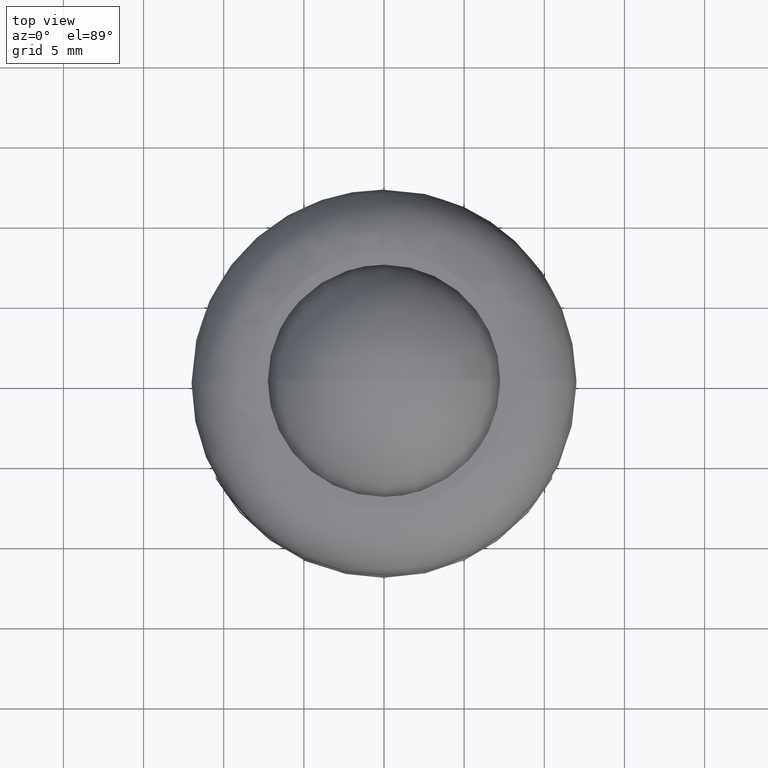
[diagram: clean part render]
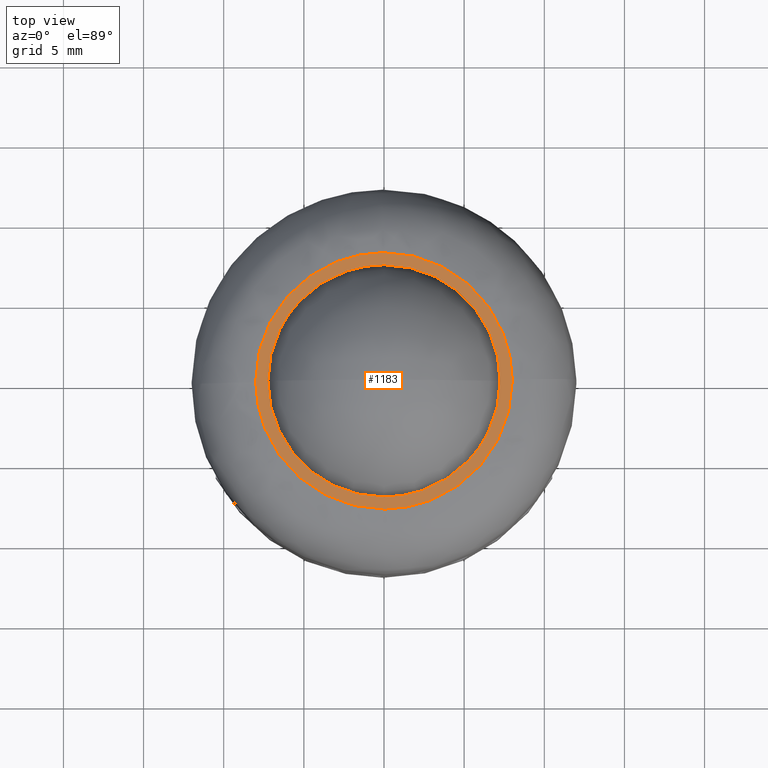
[diagram: same view with one face highlighted and labeled with its STEP entity id]
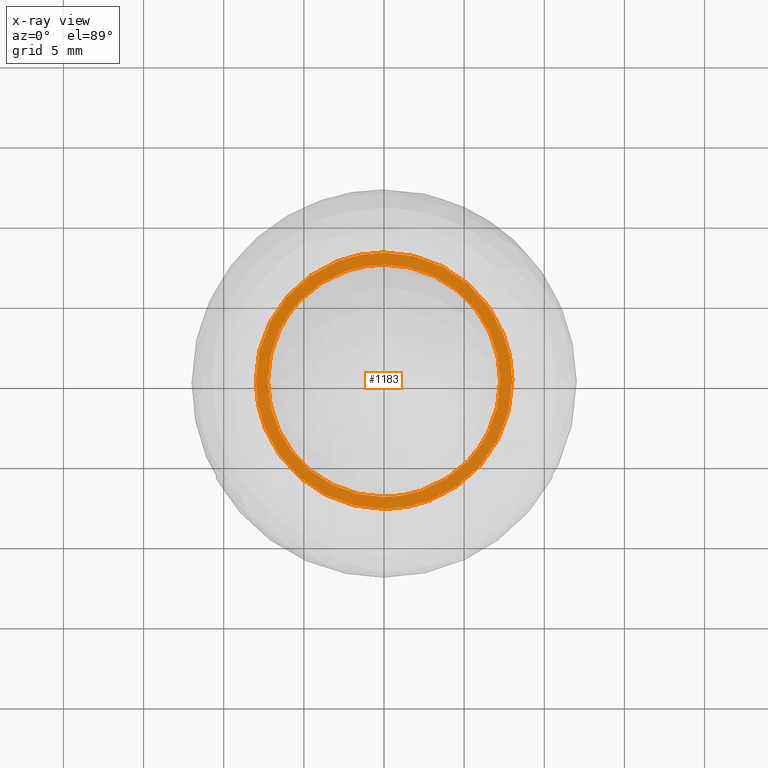
[diagram: x-ray of the same camera — body ghosted, the highlighted face saturated]
A machine part, top view. The second image highlights one B-rep face of the part: STEP entity #1183.
The next image is the same camera in x-ray: the body ghosted, the highlighted face saturated — about 0% of this face is hidden behind the body in this view.
In plain terms, the highlighted face is a freeform B-spline surface patch.
Its self-contained STEP definition (entity closure, byte-faithful):
#875=CARTESIAN_POINT('',(-5.256962737219276,4.988671336458847,11.999999999995980));
#876=VERTEX_POINT('',#875);
#877=CARTESIAN_POINT('',(0.000000297426015,7.247240854283785,12.0));
#878=VERTEX_POINT('',#877);
#879=CARTESIAN_POINT('',(-5.256962737219276,4.988671336458847,11.999999999995980));
#880=CARTESIAN_POINT('',(-4.824807146085149,5.444360692292099,11.999999999996300));
#881=CARTESIAN_POINT('',(-4.164910214977581,5.979379744965896,11.999999999996851));
#882=CARTESIAN_POINT('',(-3.159751213976001,6.537905282122430,11.999999999997570));
#883=CARTESIAN_POINT('',(-2.325536756776154,6.890105403994554,11.999999999998090));
#884=CARTESIAN_POINT('',(-1.240660778071789,7.174962478575369,11.999999999999490));
#885=CARTESIAN_POINT('',(-0.428876816743742,7.247284513954469,11.999999999999400));
#886=CARTESIAN_POINT('',(0.000000297426015,7.247240854283785,12.0));
#887=B_SPLINE_CURVE_WITH_KNOTS('',3,(#879,#880,#881,#882,#883,#884,#885,#886),.UNSPECIFIED.,.F.,.U.,(4,1,1,1,1,4),(9.078425E-009,1.883988978013885,2.527304255712489,3.446308872447911,4.595088400484167,5.881712119419972),.UNSPECIFIED.);
#888=EDGE_CURVE('',#876,#878,#887,.T.);
#939=CARTESIAN_POINT('',(5.256962737219293,-4.988671336458864,11.999999999995980));
#940=VERTEX_POINT('',#939);
#946=CARTESIAN_POINT('',(7.247240854283791,0.0,12.0));
#947=VERTEX_POINT('',#946);
#948=CARTESIAN_POINT('',(7.247240854283791,0.0,12.0));
#949=CARTESIAN_POINT('',(7.247305735029219,-0.487181698342167,11.999999999999600));
#950=CARTESIAN_POINT('',(7.151525878170276,-1.432852871077156,11.999999999998851));
#951=CARTESIAN_POINT('',(6.730940769012391,-2.809377574150429,11.999999999997730));
#952=CARTESIAN_POINT('',(6.091039670716613,-4.002357343176384,11.999999999996790));
#953=CARTESIAN_POINT('',(5.533147050700467,-4.697660844674761,11.999999999996209));
#954=CARTESIAN_POINT('',(5.256962737219293,-4.988671336458864,11.999999999995980));
#955=B_SPLINE_CURVE_WITH_KNOTS('',3,(#948,#949,#950,#951,#952,#953,#954),.UNSPECIFIED.,.F.,.U.,(4,1,1,1,4),(7.844560E-009,1.461534121799407,2.837092763778933,4.298629818670379,5.502245350614077),.UNSPECIFIED.);
#956=EDGE_CURVE('',#947,#940,#955,.T.);
#958=CARTESIAN_POINT('',(0.000000297426015,7.247240854283785,12.0));
#959=CARTESIAN_POINT('',(0.489155871948853,7.247297330047289,12.000000000000011));
#960=CARTESIAN_POINT('',(1.437793517378041,7.150842976570969,11.999999999999989));
#961=CARTESIAN_POINT('',(2.718993751458292,6.757902878774590,12.000000000000041));
#962=CARTESIAN_POINT('',(3.923954843779281,6.142095022848119,11.999999999999931));
#963=CARTESIAN_POINT('',(4.891963000465323,5.396155553304094,12.000000000000099));
#964=CARTESIAN_POINT('',(5.785928910977111,4.421889711182399,11.999999999999870));
#965=CARTESIAN_POINT('',(6.424762944613385,3.433343197894263,12.000000000000570));
#966=CARTESIAN_POINT('',(6.851829517023872,2.419761584812757,11.999999999999771));
#967=CARTESIAN_POINT('',(7.160053269458248,1.319189617061382,12.000000000000140));
#968=CARTESIAN_POINT('',(7.247351850021314,0.533633069653856,11.999999999999980));
#969=CARTESIAN_POINT('',(7.247240854283791,0.0,12.0));
#970=B_SPLINE_CURVE_WITH_KNOTS('',3,(#958,#959,#960,#961,#962,#963,#964,#965,#966,#967,#968,#969),.UNSPECIFIED.,.F.,.U.,(4,1,1,1,1,1,1,1,1,4),(0.000000032947479,1.467457646778000,2.845989532820656,4.002180844816370,5.514120129355026,6.492405251628257,7.959871914419603,9.027126035985820,9.783092513500840,11.383957003770171),.UNSPECIFIED.);
#971=EDGE_CURVE('',#878,#947,#970,.T.);
#994=CARTESIAN_POINT('',(-7.247240854283791,0.0,12.0));
#995=VERTEX_POINT('',#994);
#996=CARTESIAN_POINT('',(-7.247240854283791,0.0,12.0));
#997=CARTESIAN_POINT('',(-7.247399600119799,0.616151337552538,11.999999999999510));
#998=CARTESIAN_POINT('',(-7.114870148782108,1.647734526824720,11.999999999998670));
#999=CARTESIAN_POINT('',(-6.662610385164340,2.921739774144355,11.999999999997680));
#1000=CARTESIAN_POINT('',(-6.085714459935689,3.997336259024675,11.999999999996721));
#1001=CARTESIAN_POINT('',(-5.592369715268278,4.635330833607652,11.999999999996360));
#1002=CARTESIAN_POINT('',(-5.256962737219276,4.988671336458847,11.999999999995980));
#1003=B_SPLINE_CURVE_WITH_KNOTS('',3,(#996,#997,#998,#999,#1000,#1001,#1002),.UNSPECIFIED.,.F.,.U.,(4,1,1,1,4),(7.845852E-009,1.848412591701337,3.095006801522973,4.040711236659594,5.502245350614067),.UNSPECIFIED.);
#1004=EDGE_CURVE('',#995,#876,#1003,.T.);
#1006=CARTESIAN_POINT('',(-0.000000297425916,-7.247240854283785,12.0));
#1007=VERTEX_POINT('',#1006);
#1008=CARTESIAN_POINT('',(-0.000000297425916,-7.247240854283785,12.0));
#1009=CARTESIAN_POINT('',(-0.622580329106436,-7.247410086486915,11.999999999999980));
#1010=CARTESIAN_POINT('',(-1.571133198876027,-7.124220017168261,12.000000000000069));
#1011=CARTESIAN_POINT('',(-2.894472582022212,-6.677986820061453,11.999999999999901));
#1012=CARTESIAN_POINT('',(-4.014016722922896,-6.088425706139806,12.000000000000320));
#1013=CARTESIAN_POINT('',(-4.965509503294764,-5.322112082667339,11.999999999999661));
#1014=CARTESIAN_POINT('',(-5.661070234696982,-4.549793621029393,12.000000000000050));
#1015=CARTESIAN_POINT('',(-6.256078014076634,-3.715987485292366,12.0));
#1016=CARTESIAN_POINT('',(-6.691360778446374,-2.851234747625134,11.999999999999989));
#1017=CARTESIAN_POINT('',(-7.010766209305704,-1.894085258232474,12.0));
#1018=CARTESIAN_POINT('',(-7.198026896958428,-1.022765950395861,12.0));
#1019=CARTESIAN_POINT('',(-7.247259983947497,-0.355744598396471,12.0));
#1020=CARTESIAN_POINT('',(-7.247240854283791,0.0,12.0));
#1021=B_SPLINE_CURVE_WITH_KNOTS('',3,(#1008,#1009,#1010,#1011,#1012,#1013,#1014,#1015,#1016,#1017,#1018,#1019,#1020),.UNSPECIFIED.,.F.,.U.,(4,1,1,1,1,1,1,1,1,1,4),(0.000000032949847,1.867677209044844,2.845989532822083,4.180052045780206,5.647529940665269,6.492405251628385,7.292843007855425,8.715843236272008,9.382872914135636,10.316724780423471,11.383957003770240),.UNSPECIFIED.);
#1022=EDGE_CURVE('',#1007,#995,#1021,.T.);
#1024=CARTESIAN_POINT('',(5.256962737219293,-4.988671336458864,11.999999999995980));
#1025=CARTESIAN_POINT('',(5.014472138320403,-5.244221212740564,11.999999999996129));
#1026=CARTESIAN_POINT('',(4.446717811184409,-5.761240691427637,11.999999999996589));
#1027=CARTESIAN_POINT('',(3.546680028075411,-6.351105356546346,11.999999999997330));
#1028=CARTESIAN_POINT('',(2.431225869268162,-6.864286300984578,11.999999999998121));
#1029=CARTESIAN_POINT('',(1.271317807348694,-7.176722057068716,11.999999999999060));
#1030=CARTESIAN_POINT('',(0.382920267137141,-7.247255338048872,11.999999999999650));
#1031=CARTESIAN_POINT('',(-0.000000297425916,-7.247240854283785,12.0));
#1032=B_SPLINE_CURVE_WITH_KNOTS('',3,(#1024,#1025,#1026,#1027,#1028,#1029,#1030,#1031),.UNSPECIFIED.,.F.,.U.,(4,1,1,1,1,4),(9.076632E-009,1.056868960483050,2.297547435508970,3.216552379597020,4.732942643098843,5.881712119419899),.UNSPECIFIED.);
#1033=EDGE_CURVE('',#940,#1007,#1032,.T.);
#1081=CARTESIAN_POINT('',(8.799199968988896,-8.799026324457822,12.0));
#1082=CARTESIAN_POINT('',(-8.799200398142338,-8.799026324457822,12.0));
#1083=CARTESIAN_POINT('',(8.799199968988896,8.799026753602794,12.0));
#1084=CARTESIAN_POINT('',(-8.799200398142338,8.799026753602794,12.0));
#1085=B_SPLINE_SURFACE_WITH_KNOTS('',1,1,((#1081,#1083),(#1082,#1084)),.UNSPECIFIED.,.F.,.F.,.U.,(2,2),(2,2),(0.0,17.598400367131230),(0.0,17.598053078060619),.UNSPECIFIED.);
#1086=CARTESIAN_POINT('',(-7.999368353823391,-0.100528319104922,12.0));
#1087=VERTEX_POINT('',#1086);
#1088=CARTESIAN_POINT('',(-8.0,0.0,12.0));
#1089=VERTEX_POINT('',#1088);
#1090=CARTESIAN_POINT('',(-7.999368353823391,-0.100528319104922,12.0));
#1091=CARTESIAN_POINT('',(-8.0,0.0,12.0));
#1092=QUASI_UNIFORM_CURVE('',1,(#1090,#1091),.UNSPECIFIED.,.F.,.U.);
#1093=EDGE_CURVE('',#1087,#1089,#1092,.T.);
#1094=ORIENTED_EDGE('',*,*,#1093,.F.);
#1095=CARTESIAN_POINT('',(0.050258764031957,-7.999842126982739,12.0));
#1096=VERTEX_POINT('',#1095);
#1097=CARTESIAN_POINT('',(0.050258764031957,-7.999842126982739,12.0));
#1098=CARTESIAN_POINT('',(-0.291969692002958,-8.002001624722414,12.0));
#1099=CARTESIAN_POINT('',(-1.009308690898889,-7.960417831828395,12.000000000000011));
#1100=CARTESIAN_POINT('',(-2.147877280366271,-7.738725314529022,11.999999999999950));
#1101=CARTESIAN_POINT('',(-3.240442216491117,-7.345918888468682,12.000000000000160));
#1102=CARTESIAN_POINT('',(-4.291294910956784,-6.782969535053945,11.999999999999790));
#1103=CARTESIAN_POINT('',(-5.319696521452464,-6.029499938841547,12.000000000000171));
#1104=CARTESIAN_POINT('',(-6.237553441284248,-5.072000818602808,12.000000000000030));
#1105=CARTESIAN_POINT('',(-6.895158595428486,-4.096394659710724,11.999999999999940));
#1106=CARTESIAN_POINT('',(-7.376359571363047,-3.151259520485609,12.000000000000190));
#1107=CARTESIAN_POINT('',(-7.680921348950090,-2.305472377029266,11.999999999999950));
#1108=CARTESIAN_POINT('',(-7.926310511984541,-1.240471974038401,12.0));
#1109=CARTESIAN_POINT('',(-7.993671507442953,-0.556807913680777,12.000000000000011));
#1110=CARTESIAN_POINT('',(-7.999368353823391,-0.100528319104922,12.0));
#1111=B_SPLINE_CURVE_WITH_KNOTS('',3,(#1097,#1098,#1099,#1100,#1101,#1102,#1103,#1104,#1105,#1106,#1107,#1108,#1109,#1110),.UNSPECIFIED.,.F.,.U.,(4,1,1,1,1,1,1,1,1,1,1,4),(0.000000032343642,1.026706891044071,2.151201481715830,3.471268425500442,4.497982534330774,5.720274910603725,7.284759213213086,8.458154736016571,9.240414605485842,10.462700141200481,11.147179417200739,12.516118221549579),.UNSPECIFIED.);
#1112=EDGE_CURVE('',#1096,#1087,#1111,.T.);
#1113=ORIENTED_EDGE('',*,*,#1112,.F.);
#1114=CARTESIAN_POINT('',(8.0,0.0,12.0));
#1115=VERTEX_POINT('',#1114);
#1116=CARTESIAN_POINT('',(8.0,0.0,12.0));
#1117=CARTESIAN_POINT('',(8.000007600070280,-0.342235364035424,12.0));
#1118=CARTESIAN_POINT('',(7.952872440890642,-1.075597087077423,12.000000000000011));
#1119=CARTESIAN_POINT('',(7.691091632250863,-2.356401361394689,11.999999999999959));
#1120=CARTESIAN_POINT('',(7.171812730929088,-3.649187877849604,12.000000000000030));
#1121=CARTESIAN_POINT('',(6.450150170503080,-4.778970361939138,11.999999999999959));
#1122=CARTESIAN_POINT('',(5.660638851825850,-5.693878554737453,12.000000000000011));
#1123=CARTESIAN_POINT('',(4.831300056676323,-6.409815986532683,12.000000000000030));
#1124=CARTESIAN_POINT('',(3.897673977444101,-7.010298109555170,11.999999999999940));
#1125=CARTESIAN_POINT('',(2.807380275182842,-7.532101224692839,12.000000000000080));
#1126=CARTESIAN_POINT('',(1.500126976867151,-7.905486006509801,12.0));
#1127=CARTESIAN_POINT('',(0.506562304105791,-7.997003475008324,11.999999999999920));
#1128=CARTESIAN_POINT('',(0.050258764031957,-7.999842126982739,12.0));
#1129=B_SPLINE_CURVE_WITH_KNOTS('',3,(#1116,#1117,#1118,#1119,#1120,#1121,#1122,#1123,#1124,#1125,#1126,#1127,#1128),.UNSPECIFIED.,.F.,.U.,(4,1,1,1,1,1,1,1,1,1,4),(0.000000032334984,1.026707938994770,2.200099898308638,3.911291691568414,5.182463448415021,6.209194250977256,7.529226238229244,8.458163369469572,9.533772472657008,11.147190795456609,12.516130997089990),.UNSPECIFIED.);
#1130=EDGE_CURVE('',#1115,#1096,#1129,.T.);
#1131=ORIENTED_EDGE('',*,*,#1130,.F.);
#1132=CARTESIAN_POINT('',(7.999368353823392,0.100528319104922,12.0));
#1133=VERTEX_POINT('',#1132);
#1134=CARTESIAN_POINT('',(7.999368353823392,0.100528319104922,12.0));
#1135=CARTESIAN_POINT('',(8.0,0.0,12.0));
#1136=QUASI_UNIFORM_CURVE('',1,(#1134,#1135),.UNSPECIFIED.,.F.,.U.);
#1137=EDGE_CURVE('',#1133,#1115,#1136,.T.);
#1138=ORIENTED_EDGE('',*,*,#1137,.F.);
#1139=CARTESIAN_POINT('',(-0.050258764031964,7.999842126982737,12.0));
#1140=VERTEX_POINT('',#1139);
#1141=CARTESIAN_POINT('',(-0.050258764031964,7.999842126982737,12.0));
#1142=CARTESIAN_POINT('',(0.357154555699040,8.002425290386762,12.0));
#1143=CARTESIAN_POINT('',(1.090851420045500,7.950863696749345,12.000000000000030));
#1144=CARTESIAN_POINT('',(2.193254485296868,7.718645646165750,11.999999999999950));
#1145=CARTESIAN_POINT('',(3.301651557130126,7.324017649611078,12.000000000000020));
#1146=CARTESIAN_POINT('',(4.334626259802317,6.758405271722078,12.000000000000020));
#1147=CARTESIAN_POINT('',(5.194013578447635,6.108249226758629,11.999999999999950));
#1148=CARTESIAN_POINT('',(5.889519008455503,5.442226217680688,12.000000000000190));
#1149=CARTESIAN_POINT('',(6.542729858068612,4.647374056209345,11.999999999999700));
#1150=CARTESIAN_POINT('',(7.055495811261968,3.811693877314252,12.000000000000419));
#1151=CARTESIAN_POINT('',(7.512364852848422,2.818696375205685,11.999999999999799));
#1152=CARTESIAN_POINT('',(7.879499771843939,1.631033684879788,12.000000000000050));
#1153=CARTESIAN_POINT('',(7.992684656732818,0.638291297467462,12.000000000000011));
#1154=CARTESIAN_POINT('',(7.999368353823392,0.100528319104922,12.0));
#1155=B_SPLINE_CURVE_WITH_KNOTS('',3,(#1141,#1142,#1143,#1144,#1145,#1146,#1147,#1148,#1149,#1150,#1151,#1152,#1153,#1154),.UNSPECIFIED.,.F.,.U.,(4,1,1,1,1,1,1,1,1,1,1,4),(0.000000032343547,1.222264099490792,2.200097652612874,3.373486496186814,4.742442092765367,5.720274910603560,6.600287859702536,7.626997929572654,8.800393520929191,9.533762741287321,10.902720535676361,12.516118221549579),.UNSPECIFIED.);
#1156=EDGE_CURVE('',#1140,#1133,#1155,.T.);
#1157=ORIENTED_EDGE('',*,*,#1156,.F.);
#1158=CARTESIAN_POINT('',(-8.0,0.0,12.0));
#1159=CARTESIAN_POINT('',(-8.000167200685498,0.635601386879480,11.999999999999989));
#1160=CARTESIAN_POINT('',(-7.886714080959502,1.580739554100270,12.0));
#1161=CARTESIAN_POINT('',(-7.471901536628736,2.939060136856544,12.000000000000011));
#1162=CARTESIAN_POINT('',(-6.966866089063655,4.003301260853619,11.999999999999989));
#1163=CARTESIAN_POINT('',(-6.214015192261872,5.091953772995347,12.000000000000121));
#1164=CARTESIAN_POINT('',(-5.240968754148267,6.107805106585851,11.999999999999890));
#1165=CARTESIAN_POINT('',(-4.051930029535929,6.952053254056494,12.000000000000080));
#1166=CARTESIAN_POINT('',(-2.833614687808865,7.512222829160316,11.999999999999989));
#1167=CARTESIAN_POINT('',(-1.532599358545238,7.892485861523683,11.999999999999989));
#1168=CARTESIAN_POINT('',(-0.620650114664465,7.996350830415198,12.000000000000050));
#1169=CARTESIAN_POINT('',(-0.050258764031964,7.999842126982737,12.0));
#1170=B_SPLINE_CURVE_WITH_KNOTS('',3,(#1158,#1159,#1160,#1161,#1162,#1163,#1164,#1165,#1166,#1167,#1168,#1169),.UNSPECIFIED.,.F.,.U.,(4,1,1,1,1,1,1,1,1,4),(0.000000032333086,1.906745798771464,2.835684065853055,4.253530672808795,5.426918181791498,6.795850172900959,8.458163369469622,9.778230117088448,10.804950981445961,12.516130997089990),.UNSPECIFIED.);
#1171=EDGE_CURVE('',#1089,#1140,#1170,.T.);
#1172=ORIENTED_EDGE('',*,*,#1171,.F.);
#1173=EDGE_LOOP('',(#1094,#1113,#1131,#1138,#1157,#1172));
#1174=FACE_OUTER_BOUND('',#1173,.T.);
#1175=ORIENTED_EDGE('',*,*,#971,.T.);
#1176=ORIENTED_EDGE('',*,*,#956,.T.);
#1177=ORIENTED_EDGE('',*,*,#1033,.T.);
#1178=ORIENTED_EDGE('',*,*,#1022,.T.);
#1179=ORIENTED_EDGE('',*,*,#1004,.T.);
#1180=ORIENTED_EDGE('',*,*,#888,.T.);
#1181=EDGE_LOOP('',(#1175,#1176,#1177,#1178,#1179,#1180));
#1182=FACE_BOUND('',#1181,.T.);
#1183=ADVANCED_FACE('',(#1174,#1182),#1085,.F.);